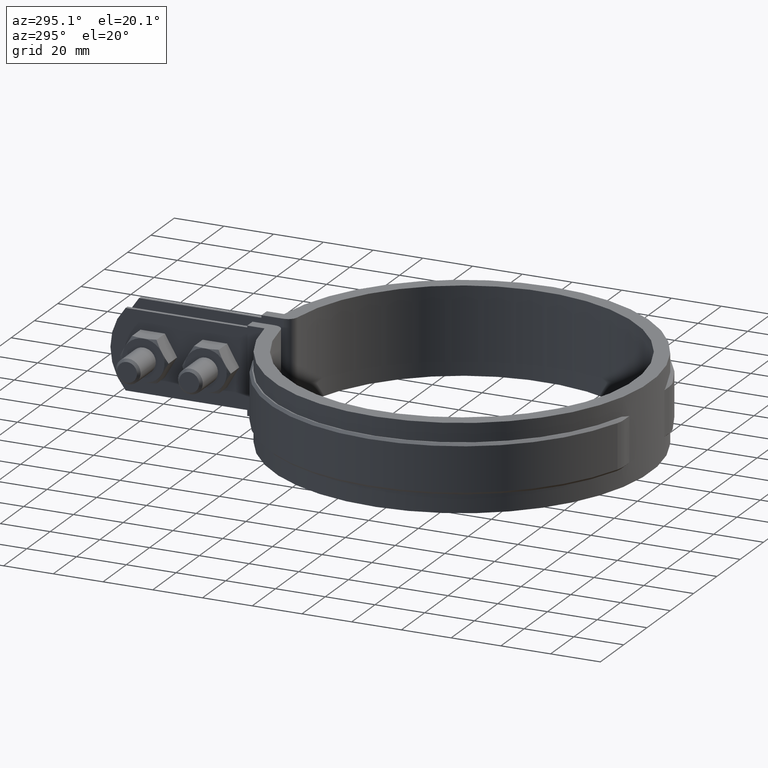
[diagram: clean part render]
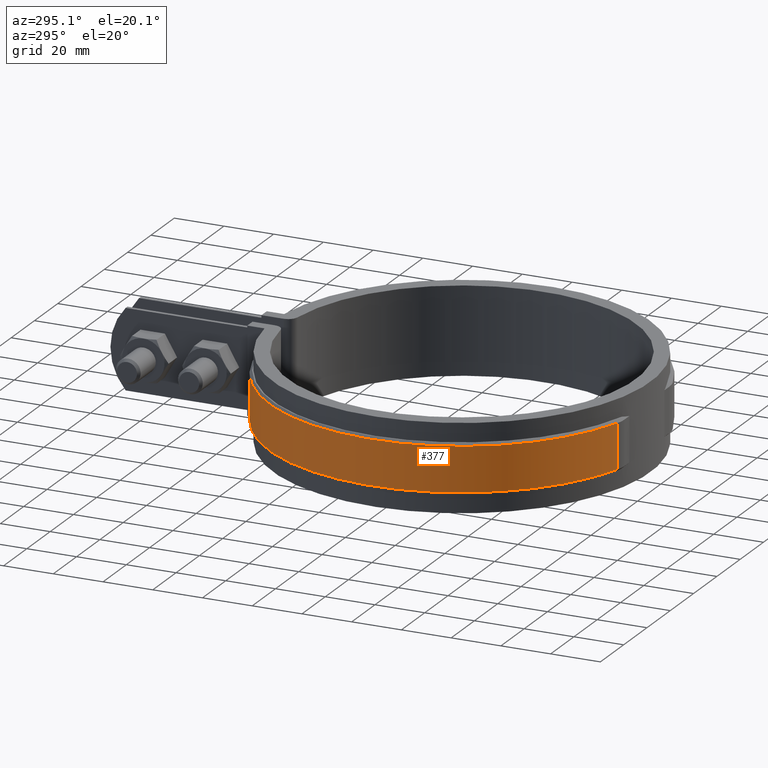
[diagram: same view with one face highlighted and labeled with its STEP entity id]
A machine part, auxiliary view. The second image highlights one B-rep face of the part: STEP entity #377.
In plain terms, the highlighted cylindrical surface (partial cylindrical patch) has radius 77.4 mm, axis along (0, 0, -1).
Its self-contained STEP definition (entity closure, byte-faithful):
#377 = ADVANCED_FACE( '', ( #610 ), #611, .T. );
#610 = FACE_OUTER_BOUND( '', #1696, .T. );
#611 = CYLINDRICAL_SURFACE( '', #1697, 77.4000000000000 );
#1696 = EDGE_LOOP( '', ( #3545, #3546, #3547, #3548 ) );
#1697 = AXIS2_PLACEMENT_3D( '', #3549, #3550, #3551 );
#3545 = ORIENTED_EDGE( '', *, *, #4811, .T. );
#3546 = ORIENTED_EDGE( '', *, *, #4782, .T. );
#3547 = ORIENTED_EDGE( '', *, *, #4766, .F. );
#3548 = ORIENTED_EDGE( '', *, *, #4773, .T. );
#3549 = CARTESIAN_POINT( '', ( -3.46944695195361E-015, -1.38777878078145E-014, -26.0000000000000 ) );
#3550 = DIRECTION( '', ( 0.000000000000000, 0.000000000000000, -1.00000000000000 ) );
#3551 = DIRECTION( '', ( 0.306337160039885, 0.951923076923077, 0.000000000000000 ) );
#4766 = EDGE_CURVE( '', #5273, #5275, #5276, .T. );
#4773 = EDGE_CURVE( '', #5273, #5284, #5286, .F. );
#4782 = EDGE_CURVE( '', #5295, #5275, #5299, .T. );
#4811 = EDGE_CURVE( '', #5284, #5295, #5342, .T. );
#5273 = VERTEX_POINT( '', #7665 );
#5275 = VERTEX_POINT( '', #7670 );
#5276 = LINE( '', #7671, #7672 );
#5284 = VERTEX_POINT( '', #7686 );
#5286 = CIRCLE( '', #7689, 77.4000000000000 );
#5295 = VERTEX_POINT( '', #7701 );
#5299 = CIRCLE( '', #7706, 77.4000000000000 );
#5342 = LINE( '', #7762, #7763 );
#7665 = CARTESIAN_POINT( '', ( -8.39999999999998, 76.9428359238207, -25.0000000000000 ) );
#7670 = CARTESIAN_POINT( '', ( -8.39999999999998, 76.9428359238207, -7.00000000000000 ) );
#7671 = CARTESIAN_POINT( '', ( -8.39999999999998, 76.9428359238207, -26.0000000000000 ) );
#7672 = VECTOR( '', #8579, 1000.00000000000 );
#7686 = CARTESIAN_POINT( '', ( -23.7104961870871, -73.6788461538461, -25.0000000000000 ) );
#7689 = AXIS2_PLACEMENT_3D( '', #8587, #8588, #8589 );
#7701 = CARTESIAN_POINT( '', ( -23.7104961870871, -73.6788461538461, -7.00000000000000 ) );
#7706 = AXIS2_PLACEMENT_3D( '', #8606, #8607, #8608 );
#7762 = CARTESIAN_POINT( '', ( -23.7104961870871, -73.6788461538461, -26.0000000000000 ) );
#7763 = VECTOR( '', #8667, 1000.00000000000 );
#8579 = DIRECTION( '', ( 0.000000000000000, 0.000000000000000, 1.00000000000000 ) );
#8587 = CARTESIAN_POINT( '', ( -3.46944695195361E-015, -1.38777878078145E-014, -25.0000000000000 ) );
#8588 = DIRECTION( '', ( 0.000000000000000, 0.000000000000000, -1.00000000000000 ) );
#8589 = DIRECTION( '', ( -1.00000000000000, 0.000000000000000, 0.000000000000000 ) );
#8606 = CARTESIAN_POINT( '', ( -3.46944695195361E-015, -1.38777878078145E-014, -7.00000000000000 ) );
#8607 = DIRECTION( '', ( 0.000000000000000, 0.000000000000000, -1.00000000000000 ) );
#8608 = DIRECTION( '', ( -1.00000000000000, 0.000000000000000, 0.000000000000000 ) );
#8667 = DIRECTION( '', ( 0.000000000000000, 0.000000000000000, 1.00000000000000 ) );